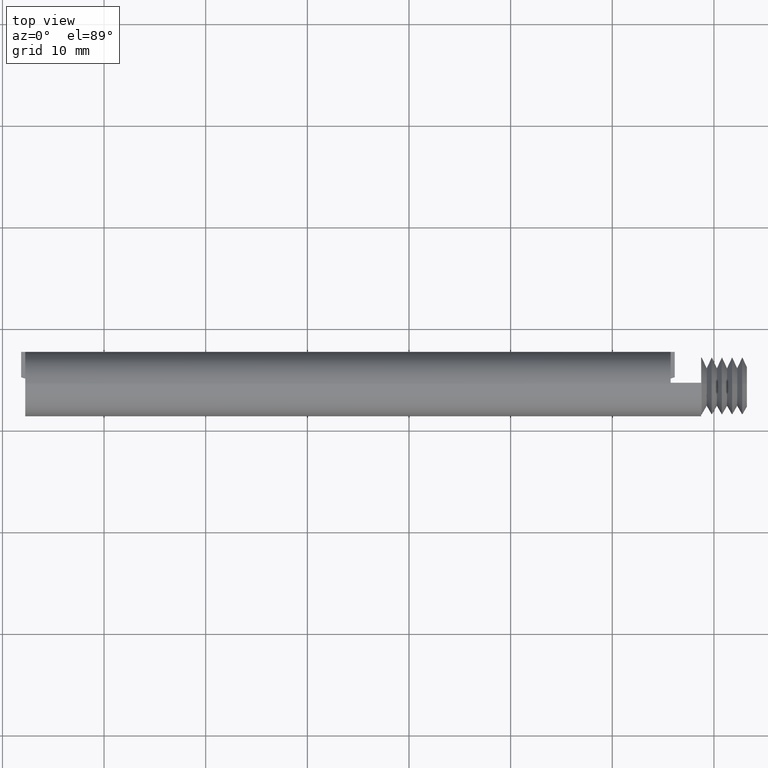
[diagram: clean part render]
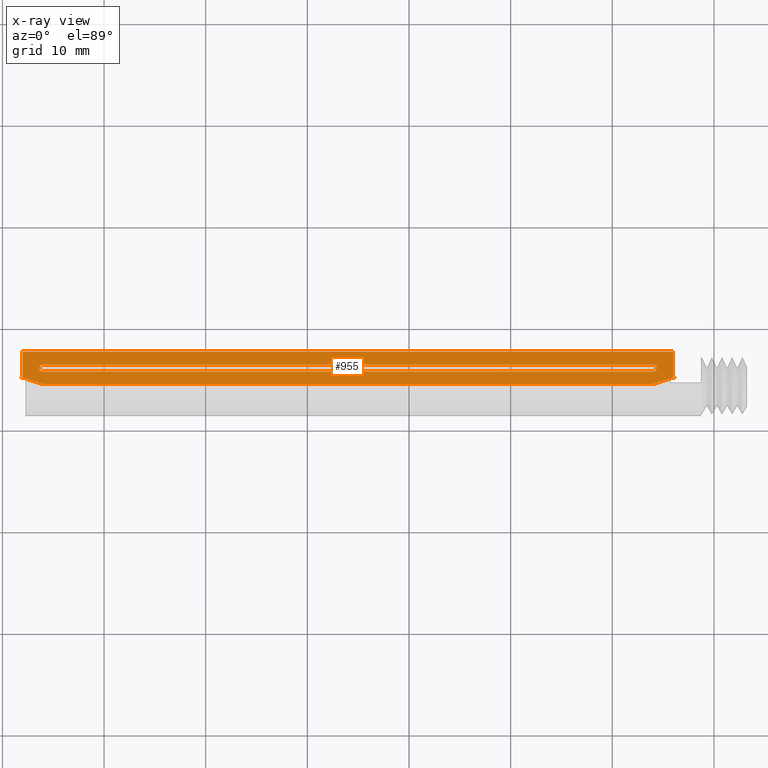
[diagram: x-ray — body ghosted, one internal face saturated and labeled with its STEP entity id]
A machine part, top view, then the same camera in x-ray: the body is ghosted and one INTERNAL B-rep face — a face not visible from any outside direction — is saturated and labeled: STEP entity #955.
In plain terms, the highlighted planar face has unit normal (0, -0, 1).
Its self-contained STEP definition (entity closure, byte-faithful):
#1 = ORIENTED_EDGE ( 'NONE', *, *, #905, .F. ) ;
#13 = CARTESIAN_POINT ( 'NONE',  ( -36.00857759600091900, -3.517998548328843200, -0.07500000000000013600 ) ) ;
#32 = LINE ( 'NONE', #2003, #1110 ) ;
#79 = DIRECTION ( 'NONE',  ( 0.0000000000000000000, -1.000000000000000000, -1.224606353822377300E-016 ) ) ;
#91 = LINE ( 'NONE', #1794, #476 ) ;
#129 = EDGE_CURVE ( 'NONE', #1205, #776, #247, .T. ) ;
#176 = EDGE_CURVE ( 'NONE', #793, #1205, #878, .T. ) ;
#180 = FACE_OUTER_BOUND ( 'NONE', #816, .T. ) ;
#204 = CARTESIAN_POINT ( 'NONE',  ( -31.25989788939928400, -23.45680050431927200, -0.07500000000000257800 ) ) ;
#216 = VECTOR ( 'NONE', #2279, 1000.000000000000000 ) ;
#217 = LINE ( 'NONE', #2009, #1617 ) ;
#247 = LINE ( 'NONE', #1735, #216 ) ;
#248 = VECTOR ( 'NONE', #398, 1000.000000000000000 ) ;
#250 = LINE ( 'NONE', #1858, #1997 ) ;
#258 = ORIENTED_EDGE ( 'NONE', *, *, #932, .T. ) ;
#271 = VECTOR ( 'NONE', #2092, 1000.000000000000000 ) ;
#329 = ORIENTED_EDGE ( 'NONE', *, *, #1135, .F. ) ;
#367 = CIRCLE ( 'NONE', #1120, 0.3500000000000004800 ) ;
#398 = DIRECTION ( 'NONE',  ( -1.000000000000000000, -0.0000000000000000000, 0.0000000000000000000 ) ) ;
#425 = LINE ( 'NONE', #1125, #248 ) ;
#451 = EDGE_CURVE ( 'NONE', #2210, #507, #250, .T. ) ;
#467 = VERTEX_POINT ( 'NONE', #1693 ) ;
#473 = PLANE ( 'NONE',  #820 ) ;
#476 = VECTOR ( 'NONE', #1951, 1000.000000000000000 ) ;
#484 = DIRECTION ( 'NONE',  ( 0.0000000000000000000, 1.224606353822377300E-016, -1.000000000000000000 ) ) ;
#489 = DIRECTION ( 'NONE',  ( -0.9508714314867186000, 0.3095860474607964900, 3.791210407752474300E-017 ) ) ;
#507 = VERTEX_POINT ( 'NONE', #1356 ) ;
#535 = LINE ( 'NONE', #204, #970 ) ;
#560 = LINE ( 'NONE', #896, #271 ) ;
#574 = CARTESIAN_POINT ( 'NONE',  ( 26.14142240399908000, -4.767998548328844100, -0.07500000000000030300 ) ) ;
#582 = LINE ( 'NONE', #1727, #1979 ) ;
#583 = DIRECTION ( 'NONE',  ( -0.9508714314867186000, -0.3095860474607964900, -3.791210407752474300E-017 ) ) ;
#627 = DIRECTION ( 'NONE',  ( -1.000000000000000000, 0.0000000000000000000, 0.0000000000000000000 ) ) ;
#658 = CARTESIAN_POINT ( 'NONE',  ( 23.99142240399908100, -4.217998548328845100, -0.07500000000000021900 ) ) ;
#728 = VERTEX_POINT ( 'NONE', #13 ) ;
#733 = CARTESIAN_POINT ( 'NONE',  ( -36.00857759600091900, -4.217998548328845100, -0.07500000000000021900 ) ) ;
#761 = CARTESIAN_POINT ( 'NONE',  ( 25.99142240399908500, -4.767998548328844100, -0.07500000000000030300 ) ) ;
#763 = VECTOR ( 'NONE', #865, 1000.000000000000000 ) ;
#776 = VERTEX_POINT ( 'NONE', #733 ) ;
#785 = EDGE_CURVE ( 'NONE', #2071, #2038, #91, .T. ) ;
#793 = VERTEX_POINT ( 'NONE', #1959 ) ;
#816 = EDGE_LOOP ( 'NONE', ( #2080, #1788, #1537, #1791, #1, #258, #329, #1351 ) ) ;
#820 = AXIS2_PLACEMENT_3D ( 'NONE', #1887, #2044, #79 ) ;
#865 = DIRECTION ( 'NONE',  ( 1.000000000000000000, 0.0000000000000000000, 0.0000000000000000000 ) ) ;
#874 = CARTESIAN_POINT ( 'NONE',  ( 23.99142240399908100, -3.517998548328843200, -0.07500000000000013600 ) ) ;
#878 = CIRCLE ( 'NONE', #1801, 0.3500000000000004800 ) ;
#882 = CARTESIAN_POINT ( 'NONE',  ( -36.00857759600091900, -3.867998548328844200, -0.07500000000000019200 ) ) ;
#896 = CARTESIAN_POINT ( 'NONE',  ( 25.99142240399908500, -4.767998548328844100, -0.07500000000000030300 ) ) ;
#905 = EDGE_CURVE ( 'NONE', #467, #1256, #32, .T. ) ;
#930 = EDGE_LOOP ( 'NONE', ( #1018, #1176, #1435, #1711 ) ) ;
#932 = EDGE_CURVE ( 'NONE', #467, #1611, #217, .T. ) ;
#955 = ADVANCED_FACE ( 'NONE', ( #1084, #180 ), #473, .F. ) ;
#970 = VECTOR ( 'NONE', #583, 1000.000000000000000 ) ;
#980 = DIRECTION ( 'NONE',  ( 0.0000000000000000000, 1.000000000000000000, 1.224606353822377300E-016 ) ) ;
#1018 = ORIENTED_EDGE ( 'NONE', *, *, #129, .F. ) ;
#1047 = EDGE_CURVE ( 'NONE', #728, #793, #2232, .T. ) ;
#1084 = FACE_BOUND ( 'NONE', #930, .T. ) ;
#1110 = VECTOR ( 'NONE', #627, 1000.000000000000000 ) ;
#1120 = AXIS2_PLACEMENT_3D ( 'NONE', #882, #1600, #2129 ) ;
#1125 = CARTESIAN_POINT ( 'NONE',  ( -38.15857759600091700, -2.267998548328844100, -0.07500000000000001100 ) ) ;
#1135 = EDGE_CURVE ( 'NONE', #2141, #1611, #425, .T. ) ;
#1176 = ORIENTED_EDGE ( 'NONE', *, *, #176, .F. ) ;
#1205 = VERTEX_POINT ( 'NONE', #658 ) ;
#1212 = CARTESIAN_POINT ( 'NONE',  ( -38.00857759600091900, -2.267998548328844100, -0.07500000000000001100 ) ) ;
#1256 = VERTEX_POINT ( 'NONE', #1743 ) ;
#1293 = EDGE_CURVE ( 'NONE', #2071, #2141, #560, .T. ) ;
#1311 = DIRECTION ( 'NONE',  ( -1.000000000000000000, -0.0000000000000000000, 0.0000000000000000000 ) ) ;
#1330 = CARTESIAN_POINT ( 'NONE',  ( 23.99142240399908100, -5.467998548328854000, -0.07499999999999776300 ) ) ;
#1351 = ORIENTED_EDGE ( 'NONE', *, *, #1293, .F. ) ;
#1356 = CARTESIAN_POINT ( 'NONE',  ( -36.00857759600094000, -5.467998548328844200, -0.07500000000000038600 ) ) ;
#1435 = ORIENTED_EDGE ( 'NONE', *, *, #1047, .F. ) ;
#1537 = ORIENTED_EDGE ( 'NONE', *, *, #451, .T. ) ;
#1600 = DIRECTION ( 'NONE',  ( 0.0000000000000000000, 1.224606353822377300E-016, -1.000000000000000000 ) ) ;
#1611 = VERTEX_POINT ( 'NONE', #1212 ) ;
#1617 = VECTOR ( 'NONE', #980, 1000.000000000000000 ) ;
#1693 = CARTESIAN_POINT ( 'NONE',  ( -38.00857759600091900, -4.767998548328844100, -0.07500000000000030300 ) ) ;
#1711 = ORIENTED_EDGE ( 'NONE', *, *, #2029, .F. ) ;
#1713 = CARTESIAN_POINT ( 'NONE',  ( 23.99142240399908100, -3.867998548328844200, -0.07500000000000019200 ) ) ;
#1727 = CARTESIAN_POINT ( 'NONE',  ( -38.89451891629432400, -4.528389746372847700, -0.07500000000000027500 ) ) ;
#1735 = CARTESIAN_POINT ( 'NONE',  ( 23.99142240399908100, -4.217998548328845100, -0.07500000000000021900 ) ) ;
#1743 = CARTESIAN_POINT ( 'NONE',  ( -38.15857759600091700, -4.767998548328844100, -0.07500000000000030300 ) ) ;
#1760 = EDGE_CURVE ( 'NONE', #2038, #2210, #535, .T. ) ;
#1788 = ORIENTED_EDGE ( 'NONE', *, *, #1760, .T. ) ;
#1791 = ORIENTED_EDGE ( 'NONE', *, *, #2303, .T. ) ;
#1794 = CARTESIAN_POINT ( 'NONE',  ( 25.99142240399908500, -4.767998548328844100, -0.07500000000000030300 ) ) ;
#1801 = AXIS2_PLACEMENT_3D ( 'NONE', #1713, #484, #1898 ) ;
#1828 = CARTESIAN_POINT ( 'NONE',  ( 25.99142240399908500, -2.267998548328844100, -0.07500000000000001100 ) ) ;
#1858 = CARTESIAN_POINT ( 'NONE',  ( -38.15857759600091700, -5.467998548328844200, -0.07500000000000038600 ) ) ;
#1887 = CARTESIAN_POINT ( 'NONE',  ( -38.15857759600091700, -2.267998548328844100, -0.07500000000000001100 ) ) ;
#1898 = DIRECTION ( 'NONE',  ( 0.0000000000000000000, 1.000000000000000000, 1.161645184805896000E-016 ) ) ;
#1951 = DIRECTION ( 'NONE',  ( 1.000000000000000000, 0.0000000000000000000, 0.0000000000000000000 ) ) ;
#1959 = CARTESIAN_POINT ( 'NONE',  ( 23.99142240399908100, -3.517998548328843200, -0.07500000000000013600 ) ) ;
#1979 = VECTOR ( 'NONE', #489, 1000.000000000000000 ) ;
#1997 = VECTOR ( 'NONE', #1311, 1000.000000000000000 ) ;
#2003 = CARTESIAN_POINT ( 'NONE',  ( -38.00857759600091900, -4.767998548328844100, -0.07500000000000030300 ) ) ;
#2009 = CARTESIAN_POINT ( 'NONE',  ( -38.00857759600091900, -4.767998548328844100, -0.07500000000000030300 ) ) ;
#2029 = EDGE_CURVE ( 'NONE', #776, #728, #367, .T. ) ;
#2038 = VERTEX_POINT ( 'NONE', #574 ) ;
#2044 = DIRECTION ( 'NONE',  ( 0.0000000000000000000, -1.224606353822377300E-016, 1.000000000000000000 ) ) ;
#2071 = VERTEX_POINT ( 'NONE', #761 ) ;
#2080 = ORIENTED_EDGE ( 'NONE', *, *, #785, .T. ) ;
#2092 = DIRECTION ( 'NONE',  ( 0.0000000000000000000, 1.000000000000000000, 1.224606353822377300E-016 ) ) ;
#2129 = DIRECTION ( 'NONE',  ( 0.0000000000000000000, -1.000000000000000000, -1.161645184805896000E-016 ) ) ;
#2141 = VERTEX_POINT ( 'NONE', #1828 ) ;
#2210 = VERTEX_POINT ( 'NONE', #1330 ) ;
#2232 = LINE ( 'NONE', #874, #763 ) ;
#2279 = DIRECTION ( 'NONE',  ( -1.000000000000000000, 0.0000000000000000000, 0.0000000000000000000 ) ) ;
#2303 = EDGE_CURVE ( 'NONE', #507, #1256, #582, .T. ) ;